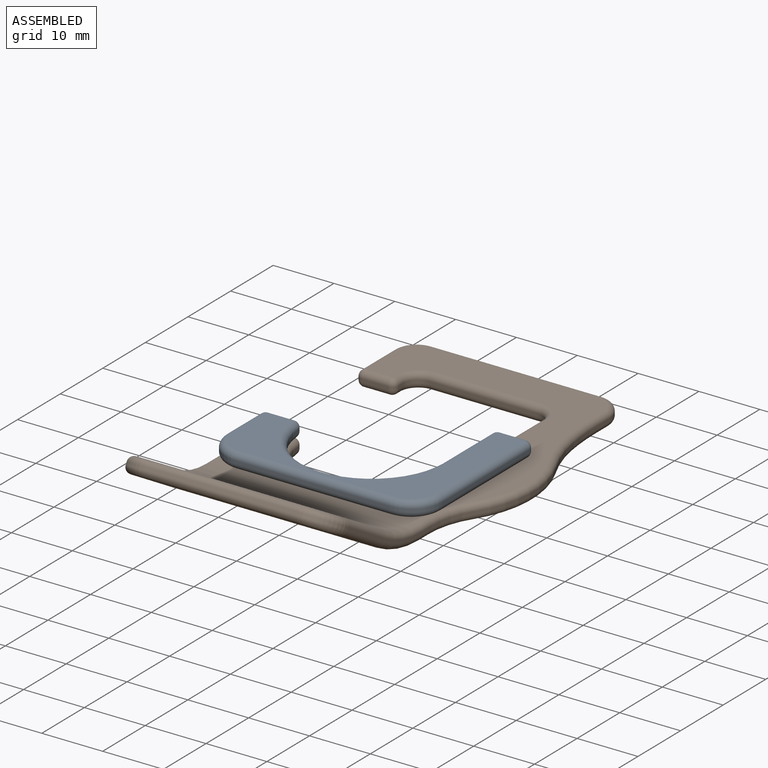
[diagram: assembled view]
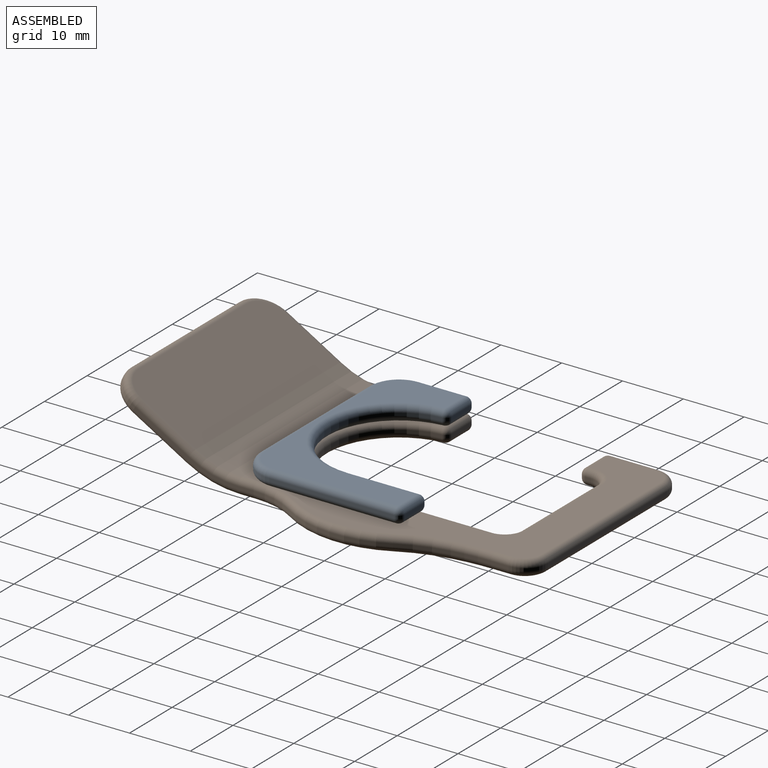
[diagram: assembled view, second angle]
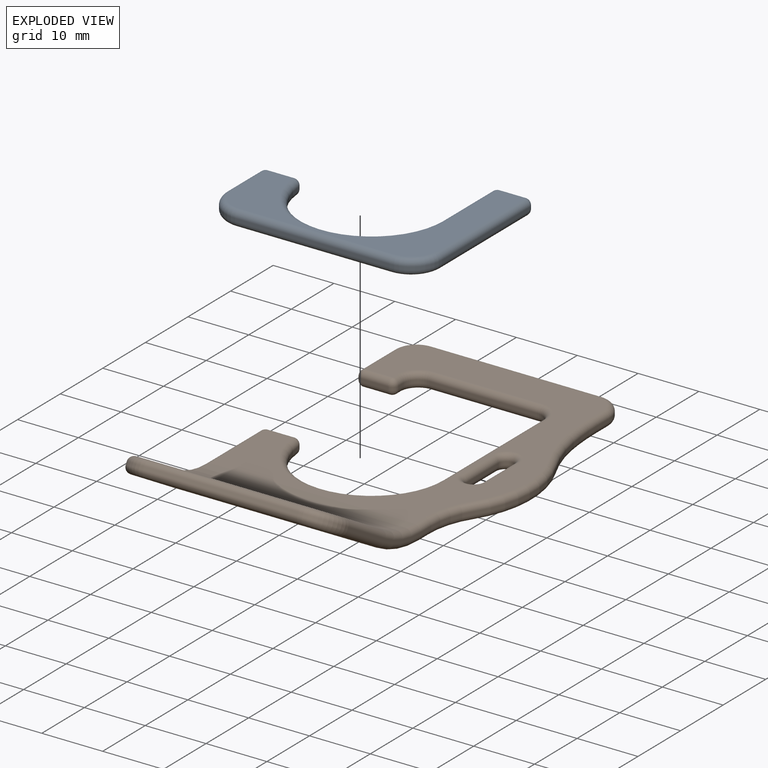
[diagram: exploded view]
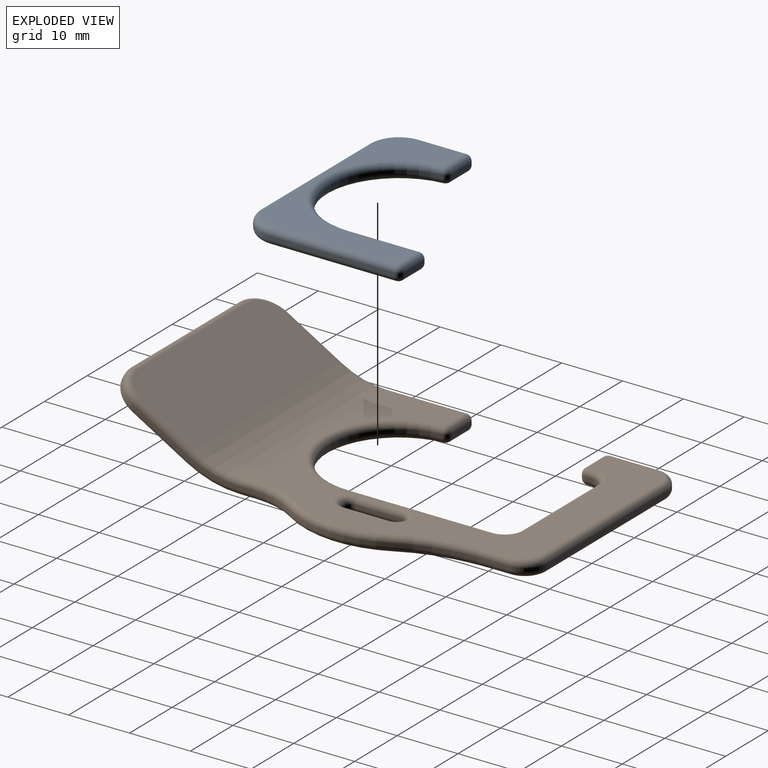
[diagram: exploded view, second angle]
ASSEMBLY  parts=2 mates=2
PART A: 41 faces, bbox 36.4x2.5x27.1 mm
  f0: cylinder r=11.43mm len=22.82mm, axis (0,1,0), area 17.8mm2, adj f6,f19,f27,f28
  f1: plane 4.36x0.51mm, normal (0,0,1), area 2.2mm2, adj f28,f29,f35,f36
  f2: plane 7.87x0.51mm, normal (-1,0,0), area 4mm2, adj f9,f30,f36,f40
  f3: plane 25.4x0.51mm, normal (0,0,-1), area 12.9mm2, adj f9,f10,f20,f37
  f4: plane 20.57x0.51mm, normal (1,0,0), area 10.5mm2, adj f10,f12,f21,f31
  f5: plane 4.32x0.51mm, normal (0,0,1), area 2.2mm2, adj f13,f14,f21,f22
  f6: plane 11.68x0.51mm, normal (-1,0,0), area 5.9mm2, adj f0,f14,f15,f23
  f7: plane 33.53x24.64mm, normal (0,-1,0), area 230mm2, adj f12,f13,f15,f16,f19,f20,f25,f29
  f8: plane 33.53x24.64mm, normal (0,1,0), area 230mm2, adj f22,f23,f27,f31,f34,f35,f37,f39
  f9: cylinder r=5.08mm len=5.08mm, axis (0,1,0), area 4.1mm2, adj f2,f3,f25,f39
  f10: cylinder r=5.08mm len=5.08mm, axis (0,-1,0), area 4.1mm2, adj f3,f4,f16,f34
  f11: sphere r=1.02mm, area 1.6mm2, adj f13,f14,f15
  f12: cylinder r=1.02mm len=20.57mm, axis (0,0,-1), area 32.8mm2, adj f4,f7,f16,f17
  f13: cylinder r=1.02mm len=4.32mm, axis (1,0,0), area 6.9mm2, adj f5,f7,f11,f17
  f14: cylinder r=1.02mm len=1.02mm, axis (0,1,0), area 0.8mm2, adj f5,f6,f11,f18
  f15: cylinder r=1.02mm len=11.68mm, axis (0,0,1), area 18.6mm2, adj f6,f7,f11,f19
  f16: torus R=4.06mm, axis (0,-1,0), area 11.8mm2, adj f7,f10,f12,f20
  f17: sphere r=1.02mm, area 1.6mm2, adj f12,f13,f21
  f18: sphere r=1.02mm, area 1.6mm2, adj f14,f22,f23
  f19: torus R=12.45mm, axis (0,-1,0), area 57.6mm2, adj f0,f7,f15,f24
  f20: cylinder r=1.02mm len=25.4mm, axis (-1,0,0), area 40.5mm2, adj f3,f7,f16,f25
  f21: cylinder r=1.02mm len=1.02mm, axis (0,1,0), area 0.8mm2, adj f4,f5,f17,f26
  f22: cylinder r=1.02mm len=4.32mm, axis (-1,0,0), area 6.9mm2, adj f5,f8,f18,f26
  f23: cylinder r=1.02mm len=11.68mm, axis (0,0,-1), area 18.6mm2, adj f6,f8,f18,f27
  f24: sphere r=1.02mm, area 1.5mm2, adj f19,f28,f29
  f25: torus R=4.06mm, axis (0,-1,0), area 11.8mm2, adj f7,f9,f20,f30
  f26: sphere r=1.02mm, area 1.6mm2, adj f21,f22,f31
  f27: torus R=12.45mm, axis (0,-1,0), area 57.6mm2, adj f0,f8,f23,f32
  f28: cylinder r=1.02mm len=1.01mm, axis (0,1,0), area 0.8mm2, adj f0,f1,f24,f32
  f29: cylinder r=1.02mm len=4.36mm, axis (1,0,0), area 7mm2, adj f1,f7,f24,f33
  f30: cylinder r=1.02mm len=7.87mm, axis (0,0,1), area 12.6mm2, adj f2,f7,f25,f33
  f31: cylinder r=1.02mm len=20.57mm, axis (0,0,1), area 32.8mm2, adj f4,f8,f26,f34
  f32: sphere r=1.02mm, area 1.5mm2, adj f27,f28,f35
  f33: sphere r=1.02mm, area 1.6mm2, adj f29,f30,f36
  f34: torus R=4.06mm, axis (0,-1,0), area 11.8mm2, adj f8,f10,f31,f37
  f35: cylinder r=1.02mm len=4.36mm, axis (-1,0,0), area 7mm2, adj f1,f8,f32,f38
  f36: cylinder r=1.02mm len=1.02mm, axis (0,1,0), area 0.8mm2, adj f1,f2,f33,f38
  f37: cylinder r=1.02mm len=25.4mm, axis (1,0,0), area 40.5mm2, adj f3,f8,f34,f39
  f38: sphere r=1.02mm, area 1.6mm2, adj f35,f36,f40
  f39: torus R=4.06mm, axis (0,-1,0), area 11.8mm2, adj f8,f9,f37,f40
  f40: cylinder r=1.02mm len=7.87mm, axis (0,0,-1), area 12.6mm2, adj f2,f8,f38,f39
PART B: 104 faces, bbox 42.5x70.6x13.5 mm
  f0: plane 47.24x38.55mm, normal (0,0,1), area 604.4mm2, adj f22,f35,f36,f37,f38,f40,f42,f44
  f1: plane 47.24x38.55mm, normal (0,0,-1), area 604.4mm2, adj f21,f31,f32,f33,f34,f58,f59,f64
  f2: plane 1.02x0.51mm, normal (1,0,0), area 0.5mm2, adj f3,f63,f76,f77
  f3: cylinder r=2.54mm len=2.54mm, axis (0,0,-1), area 2mm2, adj f2,f4,f57,f71
  f4: plane 17.78x0.51mm, normal (0,-1,0), area 9mm2, adj f3,f5,f53,f64
  f5: cylinder r=2.54mm len=2.54mm, axis (0,0,-1), area 2mm2, adj f4,f6,f49,f58
  f6: plane 23.62x0.51mm, normal (-1,0,0), area 12mm2, adj f5,f7,f50,f59
  f7: cylinder r=11.43mm len=22.82mm, axis (0,0,-1), area 17.8mm2, adj f6,f54,f65,f66
  f8: plane 4.36x0.51mm, normal (0,1,0), area 2.2mm2, adj f66,f67,f78,f79
  f9: plane 30.14x7.77mm, normal (-1,0,0), area 16.1mm2, adj f26,f55,f61,f68,f79,f85,f87,f89
  f10: plane 19.72x7.77mm, normal (1,0,0), area 10.8mm2, adj f11,f25,f40,f41,f43,f97,f99,f101
  f11: cylinder r=13.19mm len=7.21mm, axis (0,0,-1), area 3.9mm2, adj f10,f12,f42,f103
  f12: cylinder r=17.68mm len=17.82mm, axis (0,0,-1), area 9.5mm2, adj f11,f39,f44,f102
  f13: cylinder r=39.79mm len=6.29mm, axis (0,0,-1), area 3.2mm2, adj f14,f39,f48,f98
  f14: plane 2.9x0.51mm, normal (1,0,0), area 1.5mm2, adj f13,f15,f52,f96
  f15: cylinder r=3.81mm len=3.81mm, axis (0,0,-1), area 3mm2, adj f14,f16,f56,f94
  f16: plane 27.94x0.51mm, normal (0,1,0), area 14.2mm2, adj f15,f17,f62,f92
  f17: cylinder r=3.81mm len=3.81mm, axis (0,0,-1), area 3mm2, adj f16,f18,f69,f90
  f18: plane 7.87x0.51mm, normal (-1,0,0), area 4mm2, adj f17,f74,f83,f88
  f19: plane 4.32x0.51mm, normal (0,-1,0), area 2.2mm2, adj f75,f76,f83,f84
  f20: plane 25.4x0.44mm, normal (0,-0.87,0.5), area 12.9mm2, adj f25,f26,f47,f93
  f21: cylinder r=17.78mm len=33.53mm, axis (-1,0,0), area 312.1mm2, adj f1,f23,f87,f99
  f22: cylinder r=15.24mm len=33.53mm, axis (-1,0,0), area 267.5mm2, adj f0,f24,f41,f61
  f23: plane 33.53x12.32mm, normal (0,-0.5,-0.87), area 469.8mm2, adj f21,f89,f91,f93,f95,f97
  f24: plane 33.53x12.32mm, normal (0,0.5,0.87), area 469.8mm2, adj f22,f43,f45,f47,f51,f55
  f25: cylinder r=5.08mm len=5.08mm, axis (0,0.5,0.87), area 4.1mm2, adj f10,f20,f45,f95
  f26: cylinder r=5.08mm len=5.08mm, axis (0,0.5,0.87), area 4.1mm2, adj f9,f20,f51,f91
  f27: plane 7.62x0.51mm, normal (1,0,0), area 3.9mm2, adj f29,f30,f31,f35
  f28: plane 7.62x0.51mm, normal (-1,0,0), area 3.9mm2, adj f29,f30,f34,f38
  f29: cylinder r=1.27mm len=2.54mm, axis (0,0,1), area 2mm2, adj f27,f28,f32,f36
  f30: cylinder r=1.27mm len=2.54mm, axis (0,0,-1), area 2mm2, adj f27,f28,f33,f37
  f31: cylinder r=1.02mm len=7.62mm, axis (0,1,0), area 12.2mm2, adj f1,f27,f32,f33
  f32: torus R=2.29mm, axis (0,0,1), area 8.2mm2, adj f1,f29,f31,f34
  f33: torus R=2.29mm, axis (0,0,1), area 8.2mm2, adj f1,f30,f31,f34
  f34: cylinder r=1.02mm len=7.62mm, axis (0,-1,0), area 12.2mm2, adj f1,f28,f32,f33
  f35: cylinder r=1.02mm len=7.62mm, axis (0,-1,0), area 12.2mm2, adj f0,f27,f36,f37
  f36: torus R=2.29mm, axis (0,0,1), area 8.2mm2, adj f0,f29,f35,f38
  f37: torus R=2.29mm, axis (0,0,1), area 8.2mm2, adj f0,f30,f35,f38
  f38: cylinder r=1.02mm len=7.62mm, axis (0,1,0), area 12.2mm2, adj f0,f28,f36,f37
  f39: cylinder r=25.4mm len=7.69mm, axis (0,0,-1), area 4.1mm2, adj f12,f13,f46,f100
  f40: cylinder r=1.02mm len=2.54mm, axis (0,-1,0), area 4.1mm2, adj f0,f10,f41,f42
  f41: torus R=16.26mm, axis (1,0,0), area 13mm2, adj f10,f22,f40,f43
  f42: torus R=14.2mm, axis (0,0,1), area 12.5mm2, adj f0,f11,f40,f44
  f43: cylinder r=1.02mm len=9.31mm, axis (0,-0.87,0.5), area 16.2mm2, adj f10,f24,f41,f45
  f44: torus R=16.66mm, axis (0,0,1), area 29.2mm2, adj f0,f12,f42,f46
  f45: torus R=4.06mm, axis (0,0.5,0.87), area 11.8mm2, adj f24,f25,f43,f47
  f46: torus R=26.42mm, axis (0,0,1), area 13.2mm2, adj f0,f39,f44,f48
  f47: cylinder r=1.02mm len=25.4mm, axis (-1,0,0), area 40.5mm2, adj f20,f24,f45,f51
  f48: torus R=40.8mm, axis (0,0,1), area 10.2mm2, adj f0,f13,f46,f52
  f49: torus R=3.56mm, axis (0,0,1), area 7.3mm2, adj f0,f5,f50,f53
  f50: cylinder r=1.02mm len=23.62mm, axis (0,1,0), area 37.7mm2, adj f0,f6,f49,f54
  f51: torus R=4.06mm, axis (0,0.5,0.87), area 11.8mm2, adj f24,f26,f47,f55
  f52: cylinder r=1.02mm len=2.9mm, axis (0,-1,0), area 4.6mm2, adj f0,f14,f48,f56
  f53: cylinder r=1.02mm len=17.78mm, axis (-1,0,0), area 28.4mm2, adj f0,f4,f49,f57
  f54: torus R=12.45mm, axis (0,0,1), area 57.6mm2, adj f0,f7,f50,f60
  f55: cylinder r=1.02mm len=9.31mm, axis (0,0.87,-0.5), area 16.2mm2, adj f9,f24,f51,f61
  f56: torus R=2.79mm, axis (0,0,1), area 8.6mm2, adj f0,f15,f52,f62
  f57: torus R=3.56mm, axis (0,0,1), area 7.3mm2, adj f0,f3,f53,f63
  f58: torus R=3.56mm, axis (0,0,1), area 7.3mm2, adj f1,f5,f59,f64
  f59: cylinder r=1.02mm len=23.62mm, axis (0,-1,0), area 37.7mm2, adj f1,f6,f58,f65
  f60: sphere r=1.02mm, area 1.5mm2, adj f54,f66,f67
  f61: torus R=16.26mm, axis (1,0,0), area 13mm2, adj f9,f22,f55,f68
  f62: cylinder r=1.02mm len=27.94mm, axis (1,0,0), area 44.6mm2, adj f0,f16,f56,f69
  f63: cylinder r=1.02mm len=1.02mm, axis (0,-1,0), area 1.6mm2, adj f0,f2,f57,f70
  f64: cylinder r=1.02mm len=17.78mm, axis (1,0,0), area 28.4mm2, adj f1,f4,f58,f71
  f65: torus R=12.45mm, axis (0,0,1), area 57.6mm2, adj f1,f7,f59,f72
  f66: cylinder r=1.02mm len=1.01mm, axis (0,0,-1), area 0.8mm2, adj f7,f8,f60,f72
  f67: cylinder r=1.02mm len=4.36mm, axis (1,0,0), area 7mm2, adj f0,f8,f60,f73
  f68: cylinder r=1.02mm len=12.95mm, axis (0,1,0), area 20.7mm2, adj f0,f9,f61,f73
  f69: torus R=2.79mm, axis (0,0,1), area 8.6mm2, adj f0,f17,f62,f74
  f70: sphere r=1.02mm, area 1.6mm2, adj f63,f75,f76
  f71: torus R=3.56mm, axis (0,0,1), area 7.3mm2, adj f1,f3,f64,f77
  f72: sphere r=1.02mm, area 1.5mm2, adj f65,f66,f78
  f73: sphere r=1.02mm, area 1.6mm2, adj f67,f68,f79
  f74: cylinder r=1.02mm len=7.87mm, axis (0,1,0), area 12.6mm2, adj f0,f18,f69,f80
  f75: cylinder r=1.02mm len=4.32mm, axis (-1,0,0), area 6.9mm2, adj f0,f19,f70,f80
  f76: cylinder r=1.02mm len=1.02mm, axis (0,0,-1), area 0.8mm2, adj f2,f19,f70,f81
  f77: cylinder r=1.02mm len=1.02mm, axis (0,1,0), area 1.6mm2, adj f1,f2,f71,f81
  f78: cylinder r=1.02mm len=4.36mm, axis (-1,0,0), area 7mm2, adj f1,f8,f72,f82
  f79: cylinder r=1.02mm len=1.02mm, axis (0,0,1), area 0.8mm2, adj f8,f9,f73,f82
  f80: sphere r=1.02mm, area 1.6mm2, adj f74,f75,f83
  f81: sphere r=1.02mm, area 1.6mm2, adj f76,f77,f84
  f82: sphere r=1.02mm, area 1.6mm2, adj f78,f79,f85
  f83: cylinder r=1.02mm len=1.02mm, axis (0,0,1), area 0.8mm2, adj f18,f19,f80,f86
  f84: cylinder r=1.02mm len=4.32mm, axis (1,0,0), area 6.9mm2, adj f1,f19,f81,f86
  f85: cylinder r=1.02mm len=12.95mm, axis (0,-1,0), area 20.7mm2, adj f1,f9,f82,f87
  f86: sphere r=1.02mm, area 1.6mm2, adj f83,f84,f88
  f87: torus R=16.76mm, axis (1,0,0), area 14.5mm2, adj f9,f21,f85,f89
  f88: cylinder r=1.02mm len=7.87mm, axis (0,-1,0), area 12.6mm2, adj f1,f18,f86,f90
  f89: cylinder r=1.02mm len=9.31mm, axis (0,0.87,-0.5), area 16.2mm2, adj f9,f23,f87,f91
  f90: torus R=2.79mm, axis (0,0,1), area 8.6mm2, adj f1,f17,f88,f92
  f91: torus R=4.06mm, axis (0,-0.5,-0.87), area 11.8mm2, adj f23,f26,f89,f93
  f92: cylinder r=1.02mm len=27.94mm, axis (-1,0,0), area 44.6mm2, adj f1,f16,f90,f94
  f93: cylinder r=1.02mm len=25.4mm, axis (1,0,0), area 40.5mm2, adj f20,f23,f91,f95
  f94: torus R=2.79mm, axis (0,0,1), area 8.6mm2, adj f1,f15,f92,f96
  f95: torus R=4.06mm, axis (0,-0.5,-0.87), area 11.8mm2, adj f23,f25,f93,f97
  f96: cylinder r=1.02mm len=2.9mm, axis (0,1,0), area 4.6mm2, adj f1,f14,f94,f98
  f97: cylinder r=1.02mm len=9.31mm, axis (0,-0.87,0.5), area 16.2mm2, adj f10,f23,f95,f99
  f98: torus R=40.8mm, axis (0,0,1), area 10.2mm2, adj f1,f13,f96,f100
  f99: torus R=16.76mm, axis (1,0,0), area 14.5mm2, adj f10,f21,f97,f101
  f100: torus R=26.42mm, axis (0,0,1), area 13.2mm2, adj f1,f39,f98,f102
  f101: cylinder r=1.02mm len=2.54mm, axis (0,1,0), area 4.1mm2, adj f1,f10,f99,f103
  f102: torus R=16.66mm, axis (0,0,1), area 29.2mm2, adj f1,f12,f100,f103
  f103: torus R=14.2mm, axis (0,0,1), area 12.5mm2, adj f1,f11,f101,f102
PLACE A rot(axis=(-1,0,0),90deg) t=(15.73,-0.71,25.22)mm
PLACE B t=(15.73,6.66,22.68)mm
MATE planar A.f8 <-> B.f0  axis (0,0,-1) through (19.22,-5.69,25.22)mm
MATE planar B.f9 <-> A.f2  axis (-1,0,0) through (-2.05,-17.24,25.67)mm
